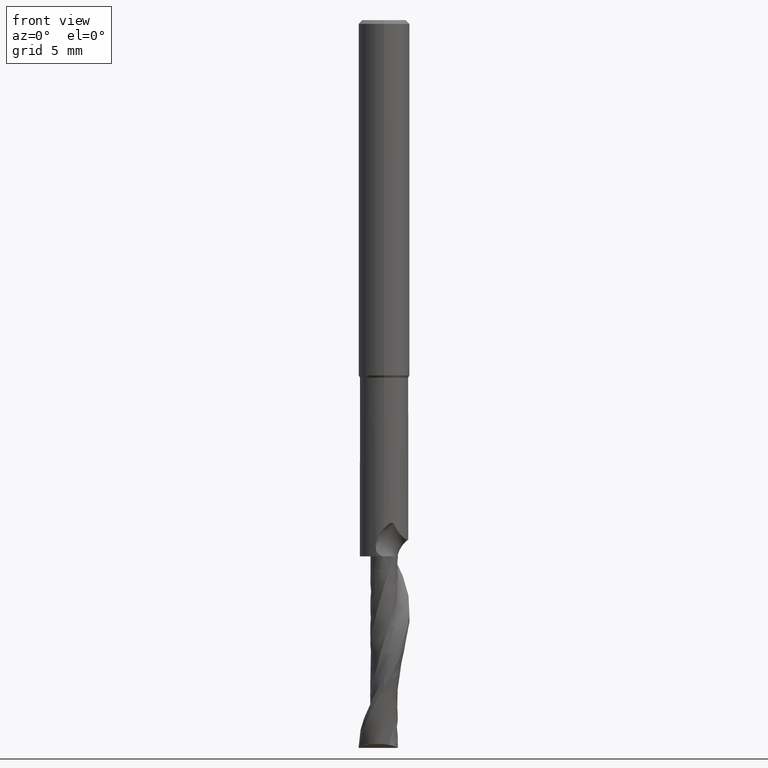
[diagram: clean part render]
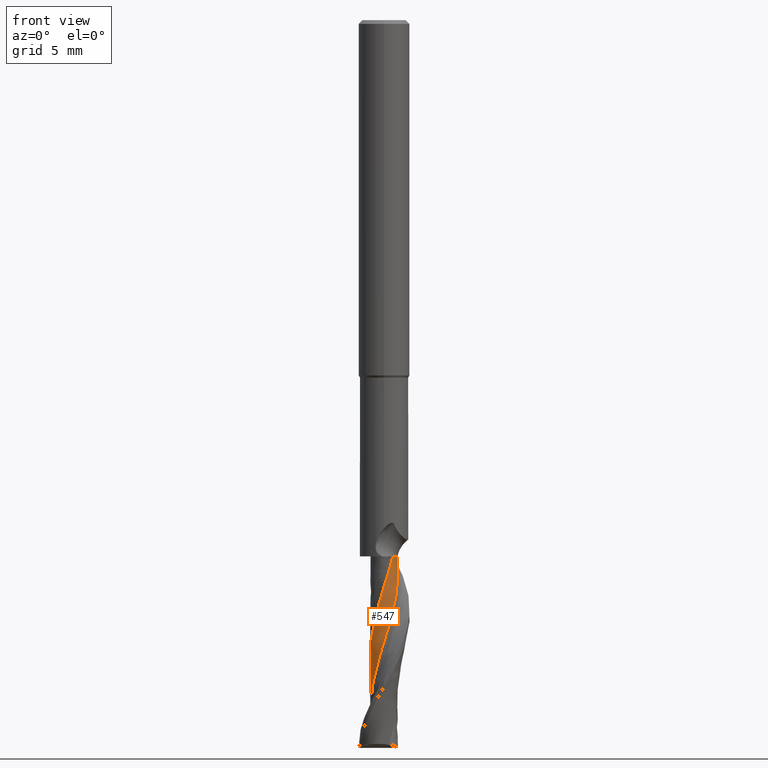
[diagram: same view with one face highlighted and labeled with its STEP entity id]
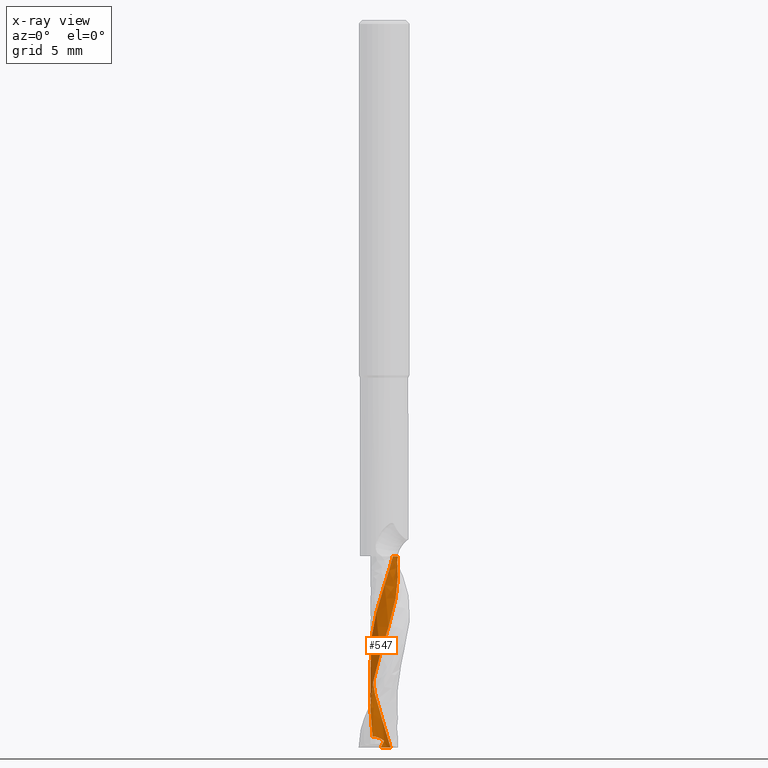
[diagram: x-ray of the same camera — body ghosted, the highlighted face saturated]
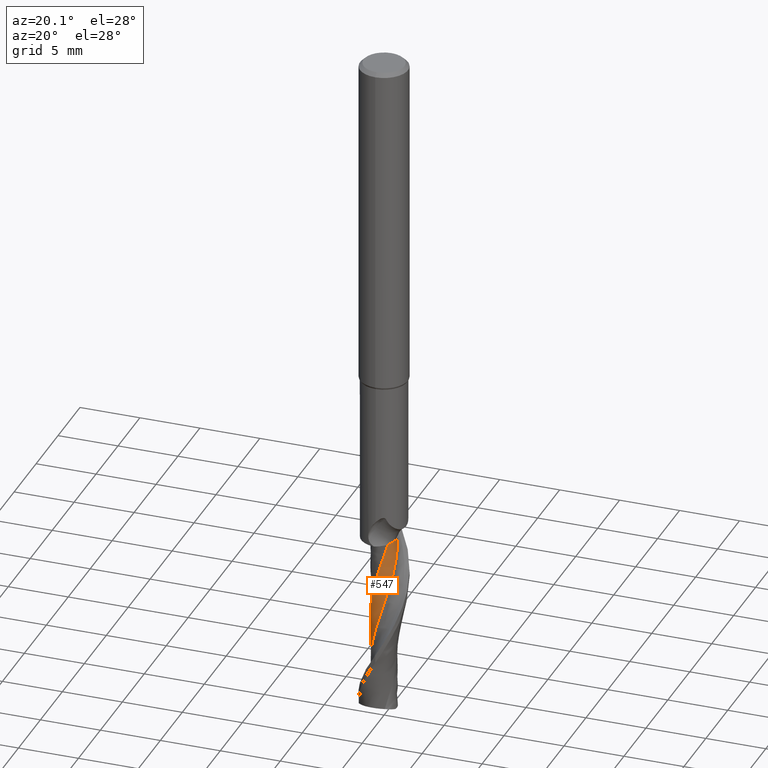
[diagram: same view with one face highlighted and labeled with its STEP entity id]
A machine part, front view. The second image highlights one B-rep face of the part: STEP entity #547.
The next image is the same camera in x-ray: the body ghosted, the highlighted face saturated — about 0% of this face is hidden behind the body in this view.
A second angle (auxiliary view) of the same face is appended — the face is thin or edge-on in the first view.
In plain terms, the highlighted face is a freeform B-spline surface patch.
Its self-contained STEP definition (entity closure, byte-faithful):
#295=VERTEX_POINT('',#792);
#315=VERTEX_POINT('',#814);
#361=EDGE_CURVE('',#563,#691,#868,.T.);
#391=VERTEX_POINT('',#901);
#443=EDGE_CURVE('',#315,#675,#960,.T.);
#493=EDGE_CURVE('',#295,#675,#1011,.T.);
#507=VERTEX_POINT('',#1026);
#533=EDGE_CURVE('',#691,#315,#1056,.T.);
#547=ADVANCED_FACE('',(#1070),#1071,.T.);
#563=VERTEX_POINT('',#1089);
#587=EDGE_CURVE('',#391,#563,#1115,.T.);
#675=VERTEX_POINT('',#1211);
#691=VERTEX_POINT('',#1227);
#743=EDGE_CURVE('',#507,#391,#1286,.T.);
#745=EDGE_CURVE('',#295,#507,#1288,.T.);
#792=CARTESIAN_POINT('',(-0.908903919637681,0.59766019299976,-56.1065295811467));
#814=CARTESIAN_POINT('',(1.05927734357222,-0.256634524727311,-42.0));
#868=B_SPLINE_CURVE_WITH_KNOTS('',3,(#2028,#2029,#2030,#2031,#2032,#2033,#2034,#2035,#2036,#2037,#2038,#2039,#2040,#2041,#2042,#2043,#2044,#2045,#2046,#2047,#2048,#2049,#2050,#2051,#2052,#2053,#2054,#2055,#2056,#2057,#2058,#2059,#2060,#2061,#2062),.UNSPECIFIED.,.F.,.F.,(4,1,2,1,2,1,2,2,2,2,2,2,2,2,2,2,2,2,4),(0.0,0.719943288048691,1.43988657609738,2.15982986414607,2.87977315219476,4.31965972829214,5.75954630438952,7.19943288048691,8.63931945658429,10.0792060326817,11.519092608779,12.9589791848764,14.3988657609738,15.8387523370712,17.2786389131686,18.718525489266,20.1584120653633,21.5982986414607,23.0381852175581),.UNSPECIFIED.);
#901=CARTESIAN_POINT('',(-0.274290728310253,1.0536842717556,-57.0));
#960=B_SPLINE_CURVE_WITH_KNOTS('',3,(#2479,#2480,#2481,#2482,#2483,#2484,#2485,#2486,#2487,#2488),.UNSPECIFIED.,.F.,.F.,(4,2,2,2,4),(0.0,0.421112725777458,0.84222565747436,1.10006293085061,1.35790106555128),.UNSPECIFIED.);
#1011=B_SPLINE_CURVE_WITH_KNOTS('',3,(#2650,#2651,#2652,#2653,#2654,#2655,#2656,#2657,#2658,#2659,#2660,#2661,#2662,#2663,#2664,#2665,#2666,#2667,#2668,#2669,#2670,#2671,#2672,#2673,#2674,#2675,#2676,#2677,#2678,#2679,#2680,#2681,#2682,#2683,#2684,#2685,#2686,#2687),.UNSPECIFIED.,.F.,.F.,(4,1,2,1,2,1,1,2,1,1,1,2,1,1,2,1,1,2,1,1,1,2,1,1,2,1,1,4),(0.0,0.719943288048691,1.43988657609738,2.15982986414607,2.87977315219476,4.31965972829214,5.03960301634083,5.75954630438952,6.47948959243822,7.19943288048691,7.9193761685356,8.63931945658429,9.35926274463298,10.439177676706,11.519092608779,12.5990075408521,13.6789224729251,14.3988657609738,15.1188090490225,15.8387523370712,16.5586956251199,17.2786389131686,17.9985822012173,19.0784971332903,20.1584120653633,21.2383269974364,22.3182419295094,23.0381852175581),.UNSPECIFIED.);
#1026=CARTESIAN_POINT('',(0.00184808041368633,1.08989929635253,-56.4458660816852));
#1056=B_SPLINE_CURVE_WITH_KNOTS('',3,(#2779,#2780,#2781,#2782,#2783,#2784,#2785,#2786,#2787,#2788),.UNSPECIFIED.,.F.,.F.,(4,2,2,2,4),(0.0,0.421112725777458,0.84222565747436,1.10006293085061,1.35790106555128),.UNSPECIFIED.);
#1070=FACE_OUTER_BOUND('',#2816,.T.);
#1071=B_SPLINE_SURFACE_WITH_KNOTS('',3,3,((#2817,#2818,#2819,#2820,#2821,#2822,#2823,#2824,#2825,#2826,#2827,#2828,#2829,#2830,#2831,#2832,#2833,#2834,#2835,#2836,#2837,#2838,#2839,#2840,#2841,#2842,#2843,#2844,#2845,#2846,#2847,#2848,#2849,#2850,#2851,#2852,#2853,#2854),(#2855,#2856,#2857,#2858,#2859,#2860,#2861,#2862,#2863,#2864,#2865,#2866,#2867,#2868,#2869,#2870,#2871,#2872,#2873,#2874,#2875,#2876,#2877,#2878,#2879,#2880,#2881,#2882,#2883,#2884,#2885,#2886,#2887,#2888,#2889,#2890,#2891,#2892),(#2893,#2894,#2895,#2896,#2897,#2898,#2899,#2900,#2901,#2902,#2903,#2904,#2905,#2906,#2907,#2908,#2909,#2910,#2911,#2912,#2913,#2914,#2915,#2916,#2917,#2918,#2919,#2920,#2921,#2922,#2923,#2924,#2925,#2926,#2927,#2928,#2929,#2930),(#2931,#2932,#2933,#2934,#2935,#2936,#2937,#2938,#2939,#2940,#2941,#2942,#2943,#2944,#2945,#2946,#2947,#2948,#2949,#2950,#2951,#2952,#2953,#2954,#2955,#2956,#2957,#2958,#2959,#2960,#2961,#2962,#2963,#2964,#2965,#2966,#2967,#2968),(#2969,#2970,#2971,#2972,#2973,#2974,#2975,#2976,#2977,#2978,#2979,#2980,#2981,#2982,#2983,#2984,#2985,#2986,#2987,#2988,#2989,#2990,#2991,#2992,#2993,#2994,#2995,#2996,#2997,#2998,#2999,#3000,#3001,#3002,#3003,#3004,#3005,#3006),(#3007,#3008,#3009,#3010,#3011,#3012,#3013,#3014,#3015,#3016,#3017,#3018,#3019,#3020,#3021,#3022,#3023,#3024,#3025,#3026,#3027,#3028,#3029,#3030,#3031,#3032,#3033,#3034,#3035,#3036,#3037,#3038,#3039,#3040,#3041,#3042,#3043,#3044)),.UNSPECIFIED.,.F.,.F.,.F.,(4,1,1,4),(4,1,2,1,2,1,1,2,1,1,1,2,1,1,2,1,1,2,1,1,1,2,1,1,2,1,1,4),(-1.25663706143592,-0.785398163397447,-0.314159265358979,0.0),(0.0,0.719943288048691,1.43988657609738,2.15982986414607,2.87977315219476,4.31965972829214,5.03960301634083,5.75954630438952,6.47948959243822,7.19943288048691,7.9193761685356,8.63931945658429,9.35926274463298,10.439177676706,11.519092608779,12.5990075408521,13.6789224729251,14.3988657609738,15.1188090490225,15.8387523370712,16.5586956251199,17.2786389131686,17.9985822012173,19.0784971332903,20.1584120653633,21.2383269974364,22.3182419295094,23.0381852175581),.UNSPECIFIED.);
#1089=CARTESIAN_POINT('',(0.525325365679518,0.951860172944799,-56.9999999999998));
#1115=B_SPLINE_CURVE_WITH_KNOTS('',3,(#3279,#3280,#3281,#3282,#3283,#3284,#3285,#3286,#3287,#3288),.UNSPECIFIED.,.F.,.F.,(4,2,2,2,4),(0.0,0.33935916685655,0.678716511037122,1.01807189192209,1.35742536573676),.UNSPECIFIED.);
#1211=CARTESIAN_POINT('',(1.02057109822842,0.37498551083274,-42.0));
#1227=CARTESIAN_POINT('',(0.683510137595244,-0.846623738727398,-41.9999999999999));
#1286=B_SPLINE_CURVE_WITH_KNOTS('',3,(#4079,#4080,#4081,#4082),.UNSPECIFIED.,.F.,.F.,(4,4),(0.0,1.33610437237141),.UNSPECIFIED.);
#1288=B_SPLINE_CURVE_WITH_KNOTS('',3,(#4085,#4086,#4087,#4088,#4089,#4090,#4091,#4092,#4093,#4094),.UNSPECIFIED.,.F.,.F.,(4,2,2,2,4),(0.0,0.334964897068407,0.700336577006609,1.06687936099216,1.48462642066865),.UNSPECIFIED.);
#2028=CARTESIAN_POINT('',(1.07714679396957,-0.0426817171631313,-61.0));
#2029=CARTESIAN_POINT('',(1.08399123720889,0.00145899359468432,-60.7605133153009));
#2030=CARTESIAN_POINT('',(1.09083513255892,0.108017801827599,-60.2810729616778));
#2031=CARTESIAN_POINT('',(1.06502852875529,0.253807720360794,-59.8015541908973));
#2032=CARTESIAN_POINT('',(1.01115751003306,0.412426612829748,-59.3226640080635));
#2033=CARTESIAN_POINT('',(0.942908259945685,0.55764976591211,-58.8438243611074));
#2034=CARTESIAN_POINT('',(0.850985734571225,0.68046612159865,-58.3647078409853));
#2035=CARTESIAN_POINT('',(0.693515458203038,0.849650748012728,-57.6457773879433));
#2036=CARTESIAN_POINT('',(0.454003221681921,1.01970889234668,-56.6875313890678));
#2037=CARTESIAN_POINT('',(0.161391087956976,1.08905359496926,-55.7287286803577));
#2038=CARTESIAN_POINT('',(-0.156954180196683,1.08643210059574,-54.7705402340196));
#2039=CARTESIAN_POINT('',(-0.302679609183262,1.05380957028583,-54.2916333403399));
#2040=CARTESIAN_POINT('',(-0.570575250621284,0.93824496526071,-53.3333485294366));
#2041=CARTESIAN_POINT('',(-0.694533057388626,0.854111837657368,-52.8539710114739));
#2042=CARTESIAN_POINT('',(-0.907416134952439,0.617949992285343,-51.8956024249471));
#2043=CARTESIAN_POINT('',(-0.981987960209095,0.488025794941939,-51.4166352776186));
#2044=CARTESIAN_POINT('',(-1.07753943864469,0.211611154855253,-50.4582972246699));
#2045=CARTESIAN_POINT('',(-1.09887410064982,0.0630593954145104,-49.9789262798675));
#2046=CARTESIAN_POINT('',(-1.06820965025209,-0.252836405557617,-49.0205942806753));
#2047=CARTESIAN_POINT('',(-1.02279845019452,-0.395264436374698,-48.5416338158127));
#2048=CARTESIAN_POINT('',(-0.883578026970901,-0.652067177716402,-47.5832991772076));
#2049=CARTESIAN_POINT('',(-0.78847398670637,-0.768084464803542,-47.1039249954876));
#2050=CARTESIAN_POINT('',(-0.534623265440165,-0.958796618492741,-46.1455921935192));
#2051=CARTESIAN_POINT('',(-0.398800234823179,-1.02147122135842,-45.6666317429675));
#2052=CARTESIAN_POINT('',(-0.115126362453983,-1.09208755160707,-44.708300692565));
#2053=CARTESIAN_POINT('',(0.0348138366545575,-1.10017789254256,-44.2289301130618));
#2054=CARTESIAN_POINT('',(0.347086498472457,-1.04140070317747,-43.2706119370205));
#2055=CARTESIAN_POINT('',(0.484848963323444,-0.983472034535285,-42.791653932527));
#2056=CARTESIAN_POINT('',(0.728134405824674,-0.822039234602855,-41.8332975279097));
#2057=CARTESIAN_POINT('',(0.835207924227268,-0.71708989952403,-41.3538989479611));
#2058=CARTESIAN_POINT('',(1.00263592060748,-0.446888723728387,-40.3954960120989));
#2059=CARTESIAN_POINT('',(1.05284438898491,-0.305617984596714,-39.9165486954441));
#2060=CARTESIAN_POINT('',(1.09781520919169,-0.0174786807055713,-38.9583088715427));
#2061=CARTESIAN_POINT('',(1.09259152842703,0.131383705920863,-38.4790170220603));
#2062=CARTESIAN_POINT('',(1.05099513463292,0.282352454545382,-37.9999154849174));
#2479=CARTESIAN_POINT('',(0.683510137595202,-0.846623738727431,-42.0));
#2480=CARTESIAN_POINT('',(0.793251132860247,-0.759097137414931,-42.0));
#2481=CARTESIAN_POINT('',(0.884846999414399,-0.650972427353277,-42.0));
#2482=CARTESIAN_POINT('',(1.02143715060763,-0.405698830103435,-42.0));
#2483=CARTESIAN_POINT('',(1.06512552828763,-0.270894892330474,-42.0));
#2484=CARTESIAN_POINT('',(1.09192568841412,-0.0461705800570131,-42.0));
#2485=CARTESIAN_POINT('',(1.09186080590018,0.0400821822933118,-42.0));
#2486=CARTESIAN_POINT('',(1.07124881903562,0.210733693181734,-42.0));
#2487=CARTESIAN_POINT('',(1.05077541139157,0.294521716588546,-42.0));
#2488=CARTESIAN_POINT('',(1.02057109822843,0.374985510832737,-42.0));
#2650=CARTESIAN_POINT('',(0.37344939000775,1.01123810145868,-61.0));
#2651=CARTESIAN_POINT('',(0.340621468948526,1.0288893076158,-60.760506195822));
#2652=CARTESIAN_POINT('',(0.252167524253353,1.06605088906382,-60.2810865784436));
#2653=CARTESIAN_POINT('',(0.106589197296684,1.08872042260066,-59.8015942266927));
#2654=CARTESIAN_POINT('',(-0.0650041847785528,1.08885329739847,-59.3226830225724));
#2655=CARTESIAN_POINT('',(-0.226500323709248,1.07052014649113,-58.8438186207057));
#2656=CARTESIAN_POINT('',(-0.372479955286486,1.02276057696804,-58.3646983516158));
#2657=CARTESIAN_POINT('',(-0.584075009847519,0.927538190437248,-57.6457815826385));
#2658=CARTESIAN_POINT('',(-0.760629699724347,0.799139785852243,-56.9270810511117));
#2659=CARTESIAN_POINT('',(-0.93735269338603,0.567530126751227,-55.9684755177516));
#2660=CARTESIAN_POINT('',(-1.00325547076065,0.427115210344167,-55.4892118325112));
#2661=CARTESIAN_POINT('',(-1.05384212431218,0.273981265134756,-55.0101121116069));
#2662=CARTESIAN_POINT('',(-1.08613274959025,0.123190376706075,-54.5311239004831));
#2663=CARTESIAN_POINT('',(-1.08981111915252,-0.0947393977100193,-53.8125334274262));
#2664=CARTESIAN_POINT('',(-1.05092195248792,-0.309226318173443,-53.0936912079671));
#2665=CARTESIAN_POINT('',(-0.992349737386192,-0.45184248109855,-52.614394142631));
#2666=CARTESIAN_POINT('',(-0.91379751398994,-0.592285590688859,-52.1352111745306));
#2667=CARTESIAN_POINT('',(-0.801931091684408,-0.7494010170831,-51.5363916173422));
#2668=CARTESIAN_POINT('',(-0.582507108376933,-0.937503734222247,-50.5781463025606));
#2669=CARTESIAN_POINT('',(-0.374496034082806,-1.02819463816704,-49.8591527036784));
#2670=CARTESIAN_POINT('',(-0.13998649683277,-1.08321118320028,-49.1404036116041));
#2671=CARTESIAN_POINT('',(0.0858021659181551,-1.09864250942973,-48.4218996440312));
#2672=CARTESIAN_POINT('',(0.367723666850924,-1.03670024723659,-47.4634716578245));
#2673=CARTESIAN_POINT('',(0.538768917895585,-0.947880774702981,-46.8643597523756));
#2674=CARTESIAN_POINT('',(0.671436705492547,-0.857260267868293,-46.3851933223269));
#2675=CARTESIAN_POINT('',(0.788543334537318,-0.75716303495586,-45.9061461544446));
#2676=CARTESIAN_POINT('',(0.923954984757354,-0.585739752094358,-45.1875037938084));
#2677=CARTESIAN_POINT('',(1.02326542115862,-0.390977002860704,-44.4686493281653));
#2678=CARTESIAN_POINT('',(1.0630911599136,-0.24185291670867,-43.9893678039033));
#2679=CARTESIAN_POINT('',(1.08571731739922,-0.082644586259782,-43.5102081281282));
#2680=CARTESIAN_POINT('',(1.0919902280896,0.109767951772535,-42.911408948602));
#2681=CARTESIAN_POINT('',(1.03193434278528,0.391645075350521,-41.9531541895368));
#2682=CARTESIAN_POINT('',(0.921760859279425,0.589934272862351,-41.2341190408617));
#2683=CARTESIAN_POINT('',(0.768327891208202,0.776287987567511,-40.5153207924573));
#2684=CARTESIAN_POINT('',(0.597370918034111,0.925896733759994,-39.7968168825111));
#2685=CARTESIAN_POINT('',(0.336280156353586,1.04704142680787,-38.8384998531331));
#2686=CARTESIAN_POINT('',(0.149027748944477,1.08026934501549,-38.2394750142413));
#2687=CARTESIAN_POINT('',(0.0702150485533287,1.08485319793152,-37.9999218751364));
#2779=CARTESIAN_POINT('',(0.683510137595202,-0.846623738727431,-42.0));
#2780=CARTESIAN_POINT('',(0.793251132860247,-0.759097137414931,-42.0));
#2781=CARTESIAN_POINT('',(0.884846999414399,-0.650972427353277,-42.0));
#2782=CARTESIAN_POINT('',(1.02143715060763,-0.405698830103435,-42.0));
#2783=CARTESIAN_POINT('',(1.06512552828763,-0.270894892330474,-42.0));
#2784=CARTESIAN_POINT('',(1.09192568841412,-0.0461705800570131,-42.0));
#2785=CARTESIAN_POINT('',(1.09186080590018,0.0400821822933118,-42.0));
#2786=CARTESIAN_POINT('',(1.07124881903562,0.210733693181734,-42.0));
#2787=CARTESIAN_POINT('',(1.05077541139157,0.294521716588546,-42.0));
#2788=CARTESIAN_POINT('',(1.02057109822843,0.374985510832737,-42.0));
#2816=EDGE_LOOP('',(#4419,#4420,#4421,#4422,#4423,#4424,#4425));
#2817=CARTESIAN_POINT('',(1.07714679396957,-0.0426817171631312,-61.0));
#2818=CARTESIAN_POINT('',(1.08399123720914,0.00145899359421109,-60.7605133153009));
#2819=CARTESIAN_POINT('',(1.09083513255877,0.108017801827895,-60.2810729616778));
#2820=CARTESIAN_POINT('',(1.06502852875535,0.253807720360675,-59.8015541908973));
#2821=CARTESIAN_POINT('',(1.011157510033,0.412426612829866,-59.3226640080635));
#2822=CARTESIAN_POINT('',(0.942908259945303,0.557649765911687,-58.8438243611074));
#2823=CARTESIAN_POINT('',(0.850985734572049,0.680466121599376,-58.3647078409853));
#2824=CARTESIAN_POINT('',(0.693515458201389,0.849650748011276,-57.6457773879433));
#2825=CARTESIAN_POINT('',(0.51344957291615,0.977454701073482,-56.9270809113943));
#2826=CARTESIAN_POINT('',(0.235209211695165,1.07125328549324,-55.9684531631024));
#2827=CARTESIAN_POINT('',(0.0818047709187978,1.088398221376,-55.4891815687732));
#2828=CARTESIAN_POINT('',(-0.0773678631585045,1.087087474189,-55.0100873456041));
#2829=CARTESIAN_POINT('',(-0.229998152916381,1.06947849697836,-54.531113748526));
#2830=CARTESIAN_POINT('',(-0.439473805250305,1.00265389140837,-53.8125363403828));
#2831=CARTESIAN_POINT('',(-0.631893770249139,0.896103233047496,-53.0936865891168));
#2832=CARTESIAN_POINT('',(-0.747753826779342,0.795071376314484,-52.6143788648422));
#2833=CARTESIAN_POINT('',(-0.854195365561722,0.676990453628227,-52.1351945715788));
#2834=CARTESIAN_POINT('',(-0.966852651887986,0.521270392834581,-51.5363863773557));
#2835=CARTESIAN_POINT('',(-1.07612393721685,0.250174944818432,-50.5781482851614));
#2836=CARTESIAN_POINT('',(-1.09504104435001,0.023572420292817,-49.8591347799685));
#2837=CARTESIAN_POINT('',(-1.0720427065519,-0.213349430435923,-49.1403857805743));
#2838=CARTESIAN_POINT('',(-1.01449367576607,-0.432702476297108,-48.4219019552147));
#2839=CARTESIAN_POINT('',(-0.86370746777709,-0.682793332316813,-47.4634662491593));
#2840=CARTESIAN_POINT('',(-0.725011306389696,-0.815762503226078,-46.8643417949955));
#2841=CARTESIAN_POINT('',(-0.598085945756839,-0.911118580070204,-46.3851753940113));
#2842=CARTESIAN_POINT('',(-0.466194937918306,-0.989765757918085,-45.906138009785));
#2843=CARTESIAN_POINT('',(-0.258740751708628,-1.06381276207122,-45.1875044678727));
#2844=CARTESIAN_POINT('',(-0.0406250589490687,-1.0957001783197,-44.4686414741691));
#2845=CARTESIAN_POINT('',(0.112882002108796,-1.08548359520141,-43.9893505690514));
#2846=CARTESIAN_POINT('',(0.269018333018219,-1.05609500051862,-43.5101914810308));
#2847=CARTESIAN_POINT('',(0.452745405122458,-1.00064198689787,-42.9114053418981));
#2848=CARTESIAN_POINT('',(0.703582138264994,-0.851832741596592,-41.9531570442726));
#2849=CARTESIAN_POINT('',(0.856136423774623,-0.683314752550113,-41.2340985809784));
#2850=CARTESIAN_POINT('',(0.981707421060124,-0.480663870702303,-40.5152963790817));
#2851=CARTESIAN_POINT('',(1.06900967580832,-0.27069955677295,-39.7968125749367));
#2852=CARTESIAN_POINT('',(1.10051386106632,0.018914145933794,-38.8384967286026));
#2853=CARTESIAN_POINT('',(1.07179333152944,0.206868080232996,-38.2394662534888));
#2854=CARTESIAN_POINT('',(1.05099513463292,0.282352454545382,-37.9999154849174));
#2855=CARTESIAN_POINT('',(1.08384276252128,0.126516440514766,-61.0));
#2856=CARTESIAN_POINT('',(1.08431809833584,0.17090915781323,-60.760522751631));
#2857=CARTESIAN_POINT('',(1.07540977985709,0.277449959795774,-60.2810549134447));
#2858=CARTESIAN_POINT('',(1.02698608980152,0.419336173946331,-59.8015011269913));
#2859=CARTESIAN_POINT('',(0.947942131494542,0.570067245787315,-59.3226388052886));
#2860=CARTESIAN_POINT('',(0.856767659003914,0.70493228625181,-58.8438319693571));
#2861=CARTESIAN_POINT('',(0.745605223138932,0.813553920627919,-58.3647204193442));
#2862=CARTESIAN_POINT('',(0.561518757804888,0.958405564523014,-57.6457718263504));
#2863=CARTESIAN_POINT('',(0.361711744576311,1.05823708527317,-56.9270807266092));
#2864=CARTESIAN_POINT('',(0.0688901464276716,1.10888489406066,-55.9684235352551));
#2865=CARTESIAN_POINT('',(-0.0874288198992201,1.10212497173907,-55.4891414538375));
#2866=CARTESIAN_POINT('',(-0.246786143604995,1.07587368928824,-55.0100545228085));
#2867=CARTESIAN_POINT('',(-0.396866515487458,1.03441632074403,-54.5311002919121));
#2868=CARTESIAN_POINT('',(-0.595961467375666,0.935094365826217,-53.8125402023184));
#2869=CARTESIAN_POINT('',(-0.77185253749784,0.79870956370146,-53.0936804673241));
#2870=CARTESIAN_POINT('',(-0.872121440189491,0.679483309385277,-52.6143586142951));
#2871=CARTESIAN_POINT('',(-0.960320482323303,0.544456555026737,-52.1351725666325));
#2872=CARTESIAN_POINT('',(-1.0488152858971,0.370952810576861,-51.5363794296424));
#2873=CARTESIAN_POINT('',(-1.1160352800422,0.0830153779047352,-50.57815091195));
#2874=CARTESIAN_POINT('',(-1.09974663861439,-0.146716129182164,-49.8591110246115));
#2875=CARTESIAN_POINT('',(-1.03959711827562,-0.380584066405113,-49.1403621457486));
#2876=CARTESIAN_POINT('',(-0.947845722487674,-0.591104817376044,-48.4219050190403));
#2877=CARTESIAN_POINT('',(-0.75837783285452,-0.817762056447292,-47.4634590771113));
#2878=CARTESIAN_POINT('',(-0.598766541558275,-0.929295343086998,-46.8643179930291));
#2879=CARTESIAN_POINT('',(-0.456614836626618,-1.00499745345813,-46.385151632222));
#2880=CARTESIAN_POINT('',(-0.31228450315824,-1.06316043966852,-45.9061272159575));
#2881=CARTESIAN_POINT('',(-0.0933405898607584,-1.10501313096291,-45.1875053652401));
#2882=CARTESIAN_POINT('',(0.129731532578472,-1.10306829550864,-44.4686310620179));
#2883=CARTESIAN_POINT('',(0.281858124824703,-1.06890725986895,-43.989327726702));
#2884=CARTESIAN_POINT('',(0.433756692595826,-1.01499939712019,-43.5101694154383));
#2885=CARTESIAN_POINT('',(0.60905617305898,-0.930804159335299,-42.911400560513));
#2886=CARTESIAN_POINT('',(0.836734357865903,-0.743193880376135,-41.9531608357352));
#2887=CARTESIAN_POINT('',(0.963224593033817,-0.550824311354587,-41.2340714544418));
#2888=CARTESIAN_POINT('',(1.05735405629586,-0.328023819114653,-40.5152640295247));
#2889=CARTESIAN_POINT('',(1.11199729180259,-0.104301989951985,-39.7968068636732));
#2890=CARTESIAN_POINT('',(1.09863996840905,0.190078191411071,-38.8384925871081));
#2891=CARTESIAN_POINT('',(1.04063007946411,0.373755722105281,-38.2394546365397));
#2892=CARTESIAN_POINT('',(1.00799211083989,0.446131550981507,-37.9999070151728));
#2893=CARTESIAN_POINT('',(1.01601763482084,0.467974703546804,-61.0));
#2894=CARTESIAN_POINT('',(1.00363952035272,0.509814185677439,-60.7605346043547));
#2895=CARTESIAN_POINT('',(0.963249562604911,0.608758310097888,-60.2810322441157));
#2896=CARTESIAN_POINT('',(0.87148569642605,0.731984974981225,-59.8014344736084));
#2897=CARTESIAN_POINT('',(0.745904432696714,0.854865075290418,-59.322607149909));
#2898=CARTESIAN_POINT('',(0.613871745470773,0.958019630332257,-58.8438415268912));
#2899=CARTESIAN_POINT('',(0.47105989918096,1.0290298824518,-58.3647362155062));
#2900=CARTESIAN_POINT('',(0.245444196389741,1.11246227330461,-57.6457648469553));
#2901=CARTESIAN_POINT('',(0.0195987624896996,1.1468987918491,-56.9270804910483));
#2902=CARTESIAN_POINT('',(-0.28166088566369,1.10428516036581,-55.9683863156041));
#2903=CARTESIAN_POINT('',(-0.432332529889933,1.04833808975367,-55.4890910734203));
#2904=CARTESIAN_POINT('',(-0.580088208560719,0.972139487619029,-55.010013288022));
#2905=CARTESIAN_POINT('',(-0.713624374355998,0.884230652161087,-54.5310833930834));
#2906=CARTESIAN_POINT('',(-0.876369302956959,0.724925671625427,-53.8125450507678));
#2907=CARTESIAN_POINT('',(-1.00489775272985,0.536832845717159,-53.0936727760267));
#2908=CARTESIAN_POINT('',(-1.06526547949906,0.388717520809731,-52.6143331814102));
#2909=CARTESIAN_POINT('',(-1.10886231944134,0.22857027495603,-52.1351449234797));
#2910=CARTESIAN_POINT('',(-1.14051811507395,0.0311125525758937,-51.5363707101313));
#2911=CARTESIAN_POINT('',(-1.11558954345211,-0.270310115277176,-50.5781542147555));
#2912=CARTESIAN_POINT('',(-1.02741918971459,-0.489398866724975,-49.8590811826033));
#2913=CARTESIAN_POINT('',(-0.894466473207985,-0.699330045494336,-49.1403324621643));
#2914=CARTESIAN_POINT('',(-0.738580352770532,-0.875777820727396,-48.4219088639654));
#2915=CARTESIAN_POINT('',(-0.483031415062187,-1.03702259506562,-47.4634500774328));
#2916=CARTESIAN_POINT('',(-0.291897355251609,-1.09566460759245,-46.8642880985652));
#2917=CARTESIAN_POINT('',(-0.128740067438804,-1.12476815602108,-46.385121783074));
#2918=CARTESIAN_POINT('',(0.0306258240843927,-1.13601057484993,-45.9061136535153));
#2919=CARTESIAN_POINT('',(0.257086376534999,-1.10798876350805,-45.1875064826393));
#2920=CARTESIAN_POINT('',(0.473828238760698,-1.03603084315589,-44.4686179921221));
#2921=CARTESIAN_POINT('',(0.611702371453475,-0.954664996248022,-43.9892990296872));
#2922=CARTESIAN_POINT('',(0.743360562055642,-0.853774644550235,-43.5101417047405));
#2923=CARTESIAN_POINT('',(0.888016844490188,-0.716165810197746,-42.9113945540275));
#2924=CARTESIAN_POINT('',(1.05077516890407,-0.46210385814374,-41.9531655812496));
#2925=CARTESIAN_POINT('',(1.11371252835938,-0.234562668588748,-41.2340374017536));
#2926=CARTESIAN_POINT('',(1.13531583641912,0.0134277699245409,-40.5152233758383));
#2927=CARTESIAN_POINT('',(1.11806707855979,0.248976724696762,-39.7967996941599));
#2928=CARTESIAN_POINT('',(1.01273923627803,0.531353137398595,-38.8384873878281));
#2929=CARTESIAN_POINT('',(0.898229503012728,0.692423512300049,-38.239440059716));
#2930=CARTESIAN_POINT('',(0.843414652247447,0.752902236266424,-37.9998963765348));
#2931=CARTESIAN_POINT('',(0.728694971261275,0.832525564935115,-61.0));
#2932=CARTESIAN_POINT('',(0.702594198813939,0.863549289199922,-60.7605282595353));
#2933=CARTESIAN_POINT('',(0.629406926246145,0.934407154129376,-60.2810443793987));
#2934=CARTESIAN_POINT('',(0.497457549023051,1.00922565476268,-59.8014701528548));
#2935=CARTESIAN_POINT('',(0.333458277106947,1.07084315234894,-59.3226240957518));
#2936=CARTESIAN_POINT('',(0.172090737953486,1.11158909080792,-58.8438364106649));
#2937=CARTESIAN_POINT('',(0.0144561865433489,1.11875697814802,-58.364727759246));
#2938=CARTESIAN_POINT('',(-0.223302807219587,1.10408335224905,-57.6457685840722));
#2939=CARTESIAN_POINT('',(-0.440482651849623,1.04507073133806,-56.9270806194746));
#2940=CARTESIAN_POINT('',(-0.695296059894732,0.886562410382509,-55.968406240507));
#2941=CARTESIAN_POINT('',(-0.809476421540641,0.775605283143018,-55.4891180428222));
#2942=CARTESIAN_POINT('',(-0.913207363410328,0.647098945453286,-55.0100353606191));
#2943=CARTESIAN_POINT('',(-0.998964247757756,0.514027827753279,-54.5310924379169));
#2944=CARTESIAN_POINT('',(-1.08220917097761,0.305478832604959,-53.8125424560931));
#2945=CARTESIAN_POINT('',(-1.12316624701434,0.0846400138194821,-53.0936768957595));
#2946=CARTESIAN_POINT('',(-1.11864294784277,-0.0736325321471201,-52.6143467935524));
#2947=CARTESIAN_POINT('',(-1.09404627787118,-0.236613816846286,-52.1351597231601));
#2948=CARTESIAN_POINT('',(-1.04367874785711,-0.42811049035817,-51.5363753772353));
#2949=CARTESIAN_POINT('',(-0.901121389067309,-0.689756318543427,-50.5781524486532));
#2950=CARTESIAN_POINT('',(-0.734006793798286,-0.852678132919598,-49.8590971508648));
#2951=CARTESIAN_POINT('',(-0.5290647189154,-0.990092435928071,-49.140348358199));
#2952=CARTESIAN_POINT('',(-0.31762401322719,-1.08723125375123,-48.4219068028142));
#2953=CARTESIAN_POINT('',(-0.0231845219092392,-1.1307603350018,-47.4634548930867));
#2954=CARTESIAN_POINT('',(0.173369825126481,-1.10748565669664,-46.8643041045155));
#2955=CARTESIAN_POINT('',(0.333264250284647,-1.06851579000604,-46.3851377581292));
#2956=CARTESIAN_POINT('',(0.482080498340192,-1.0149171284155,-45.9061209133782));
#2957=CARTESIAN_POINT('',(0.675161053946933,-0.899339919061332,-45.1875058807169));
#2958=CARTESIAN_POINT('',(0.84199024873047,-0.748046281933904,-44.4686249904667));
#2959=CARTESIAN_POINT('',(0.934351339369546,-0.619235612620835,-43.9893143910268));
#2960=CARTESIAN_POINT('',(1.01351803358167,-0.474790213514645,-43.51015653868));
#2961=CARTESIAN_POINT('',(1.08943124817156,-0.292285715835655,-42.9113977686758));
#2962=CARTESIAN_POINT('',(1.13483462744353,0.00140532592919684,-41.9531630322282));
#2963=CARTESIAN_POINT('',(1.10098098215043,0.232245683699028,-41.2340556383608));
#2964=CARTESIAN_POINT('',(1.02117779957187,0.466244711673084,-40.5152451298694));
#2965=CARTESIAN_POINT('',(0.911367052075909,0.672312512519026,-39.7968035354199));
#2966=CARTESIAN_POINT('',(0.704055522965062,0.884741454406852,-38.838490172548));
#2967=CARTESIAN_POINT('',(0.53611814462882,0.984746073736796,-38.2394478642057));
#2968=CARTESIAN_POINT('',(0.462163026888442,1.01766409466533,-37.9999020714412));
#2969=CARTESIAN_POINT('',(0.479344040807237,0.972125278022467,-61.0));
#2970=CARTESIAN_POINT('',(0.447988408018598,0.993762674481421,-60.7605135128984));
#2971=CARTESIAN_POINT('',(0.362769180550525,1.04091514309516,-60.2810725835827));
#2972=CARTESIAN_POINT('',(0.219376645560213,1.07872873010742,-59.8015530800007));
#2973=CARTESIAN_POINT('',(0.0479697606672393,1.09644717264084,-59.3226634799893));
#2974=CARTESIAN_POINT('',(-0.115369290317786,1.09478355444373,-58.8438245203512));
#2975=CARTESIAN_POINT('',(-0.266383757537218,1.0621475862088,-58.3647081048521));
#2976=CARTESIAN_POINT('',(-0.487921414911874,0.988814734889428,-57.6457772705486));
#2977=CARTESIAN_POINT('',(-0.678142957636315,0.878696951915794,-56.9270809054455));
#2978=CARTESIAN_POINT('',(-0.879219450973983,0.665224326596135,-55.9684525420397));
#2979=CARTESIAN_POINT('',(-0.959677700577232,0.531583455271257,-55.4891807281643));
#2980=CARTESIAN_POINT('',(-1.02603902240149,0.383706222716036,-55.010086658836));
#2981=CARTESIAN_POINT('',(-1.07397541519499,0.236213196747946,-54.5311134672327));
#2982=CARTESIAN_POINT('',(-1.10039685891675,0.0183987628487824,-53.8125364201762));
#2983=CARTESIAN_POINT('',(-1.08382923673911,-0.200419695844342,-53.0936864591087));
#2984=CARTESIAN_POINT('',(-1.04000551943748,-0.349171510663883,-52.6143784428385));
#2985=CARTESIAN_POINT('',(-0.975956561423906,-0.497688565108342,-52.1351941087173));
#2986=CARTESIAN_POINT('',(-0.880344577533943,-0.666458652842357,-51.5363862323426));
#2987=CARTESIAN_POINT('',(-0.680264409046078,-0.877751899020907,-50.5781483388798));
#2988=CARTESIAN_POINT('',(-0.481492175854084,-0.990119041459792,-49.8591342899365));
#2989=CARTESIAN_POINT('',(-0.252702326690714,-1.0693194029025,-49.1403852782164));
#2990=CARTESIAN_POINT('',(-0.0283620822874269,-1.10825573128072,-48.4219020216616));
#2991=CARTESIAN_POINT('',(0.260445415536468,-1.07566739036585,-47.4634661014766));
#2992=CARTESIAN_POINT('',(0.440771301264233,-1.0045258580643,-46.864341293658));
#2993=CARTESIAN_POINT('',(0.582762274300395,-0.927609299731158,-46.3851748993222));
#2994=CARTESIAN_POINT('',(0.710292801416264,-0.839620089269956,-45.9061377844144));
#2995=CARTESIAN_POINT('',(0.863748453141824,-0.682115923790228,-45.1875044891657));
#2996=CARTESIAN_POINT('',(0.983487720035679,-0.497467607217579,-44.468641254789));
#2997=CARTESIAN_POINT('',(1.03877912696952,-0.352402626228723,-43.989350089164));
#2998=CARTESIAN_POINT('',(1.07782421532595,-0.195560283830597,-43.5101910205093));
#2999=CARTESIAN_POINT('',(1.10405690424436,-0.00372755577629896,-42.9114052403135));
#3000=CARTESIAN_POINT('',(1.07337392963013,0.284836571341732,-41.9531571317397));
#3001=CARTESIAN_POINT('',(0.983693891209299,0.494735611292446,-41.2340980037361));
#3002=CARTESIAN_POINT('',(0.849515424453619,0.696871467101949,-40.515295710839));
#3003=CARTESIAN_POINT('',(0.6940111565417,0.864351517977104,-39.7968124526664));
#3004=CARTESIAN_POINT('',(0.445187245486487,1.01295692127101,-38.8384966399295));
#3005=CARTESIAN_POINT('',(0.261259321443188,1.06563605266009,-38.2394660092479));
#3006=CARTESIAN_POINT('',(0.182915628472861,1.07836711530909,-37.9999153075526));
#3007=CARTESIAN_POINT('',(0.37344939000775,1.01123810145868,-61.0));
#3008=CARTESIAN_POINT('',(0.340621468948526,1.0288893076158,-60.760506195822));
#3009=CARTESIAN_POINT('',(0.252167524253353,1.06605088906382,-60.2810865784436));
#3010=CARTESIAN_POINT('',(0.106589197296684,1.08872042260066,-59.8015942266927));
#3011=CARTESIAN_POINT('',(-0.0650041847785528,1.08885329739847,-59.3226830225724));
#3012=CARTESIAN_POINT('',(-0.226500323709248,1.07052014649113,-58.8438186207057));
#3013=CARTESIAN_POINT('',(-0.372479955286486,1.02276057696804,-58.3646983516158));
#3014=CARTESIAN_POINT('',(-0.584075009847519,0.927538190437248,-57.6457815826385));
#3015=CARTESIAN_POINT('',(-0.760629699724347,0.799139785852243,-56.9270810511117));
#3016=CARTESIAN_POINT('',(-0.93735269338603,0.567530126751227,-55.9684755177516));
#3017=CARTESIAN_POINT('',(-1.00325547076065,0.427115210344167,-55.4892118325112));
#3018=CARTESIAN_POINT('',(-1.05384212431218,0.273981265134756,-55.0101121116069));
#3019=CARTESIAN_POINT('',(-1.08613274959025,0.123190376706075,-54.5311239004831));
#3020=CARTESIAN_POINT('',(-1.08981111915252,-0.0947393977100193,-53.8125334274262));
#3021=CARTESIAN_POINT('',(-1.05092195248792,-0.309226318173443,-53.0936912079671));
#3022=CARTESIAN_POINT('',(-0.992349737386192,-0.45184248109855,-52.614394142631));
#3023=CARTESIAN_POINT('',(-0.91379751398994,-0.592285590688859,-52.1352111745306));
#3024=CARTESIAN_POINT('',(-0.801931091684408,-0.7494010170831,-51.5363916173422));
#3025=CARTESIAN_POINT('',(-0.582507108376933,-0.937503734222247,-50.5781463025606));
#3026=CARTESIAN_POINT('',(-0.374496034082806,-1.02819463816704,-49.8591527036784));
#3027=CARTESIAN_POINT('',(-0.13998649683277,-1.08321118320028,-49.1404036116041));
#3028=CARTESIAN_POINT('',(0.0858021659181551,-1.09864250942973,-48.4218996440312));
#3029=CARTESIAN_POINT('',(0.367723666850924,-1.03670024723659,-47.4634716578245));
#3030=CARTESIAN_POINT('',(0.538768917895585,-0.947880774702981,-46.8643597523756));
#3031=CARTESIAN_POINT('',(0.671436705492547,-0.857260267868293,-46.3851933223269));
#3032=CARTESIAN_POINT('',(0.788543334537318,-0.75716303495586,-45.9061461544446));
#3033=CARTESIAN_POINT('',(0.923954984757354,-0.585739752094358,-45.1875037938084));
#3034=CARTESIAN_POINT('',(1.02326542115862,-0.390977002860704,-44.4686493281653));
#3035=CARTESIAN_POINT('',(1.0630911599136,-0.24185291670867,-43.9893678039033));
#3036=CARTESIAN_POINT('',(1.08571731739922,-0.082644586259782,-43.5102081281282));
#3037=CARTESIAN_POINT('',(1.0919902280896,0.109767951772535,-42.911408948602));
#3038=CARTESIAN_POINT('',(1.03193434278528,0.391645075350521,-41.9531541895368));
#3039=CARTESIAN_POINT('',(0.921760859279425,0.589934272862351,-41.2341190408617));
#3040=CARTESIAN_POINT('',(0.768327891208202,0.776287987567511,-40.5153207924573));
#3041=CARTESIAN_POINT('',(0.597370918034111,0.925896733759994,-39.7968168825111));
#3042=CARTESIAN_POINT('',(0.336280156353586,1.04704142680787,-38.8384998531331));
#3043=CARTESIAN_POINT('',(0.149027748944477,1.08026934501549,-38.2394750142413));
#3044=CARTESIAN_POINT('',(0.0702150485533287,1.08485319793152,-37.9999218751364));
#3279=CARTESIAN_POINT('',(-0.733048159370844,0.802074545909588,-57.0));
#3280=CARTESIAN_POINT('',(-0.650032838238003,0.878915472681484,-57.0));
#3281=CARTESIAN_POINT('',(-0.555437490558578,0.942212824206355,-57.0));
#3282=CARTESIAN_POINT('',(-0.350042946839724,1.03706583052174,-57.0));
#3283=CARTESIAN_POINT('',(-0.240518002428405,1.06803323537909,-57.0));
#3284=CARTESIAN_POINT('',(-0.0158662151012611,1.0947729946172,-57.0));
#3285=CARTESIAN_POINT('',(0.0978669837212365,1.09037967435883,-57.0));
#3286=CARTESIAN_POINT('',(0.319785331249802,1.04638986453987,-57.0));
#3287=CARTESIAN_POINT('',(0.426593869973223,1.00706645774129,-57.0));
#3288=CARTESIAN_POINT('',(0.525325365679634,0.951860172944734,-57.0));
#4079=CARTESIAN_POINT('',(0.240397510091046,1.06187941852473,-55.9971207900835));
#4080=CARTESIAN_POINT('',(0.0274201948251377,1.1121067455632,-56.3850262486508));
#4081=CARTESIAN_POINT('',(-0.184999703775936,1.09258442764426,-56.8070831361063));
#4082=CARTESIAN_POINT('',(-0.373038865775188,1.02196514877744,-57.2076407521384));
#4085=CARTESIAN_POINT('',(-0.908903919635375,0.597660193000402,-56.1065295811511));
#4086=CARTESIAN_POINT('',(-0.84844236776818,0.691146692299797,-56.0980734261341));
#4087=CARTESIAN_POINT('',(-0.774216185200819,0.774091122253483,-56.1039078652074));
#4088=CARTESIAN_POINT('',(-0.596682263517972,0.92027680226816,-56.1444601468892));
#4089=CARTESIAN_POINT('',(-0.495011605153071,0.978090311866964,-56.1808827734387));
#4090=CARTESIAN_POINT('',(-0.284716837636045,1.0587344875595,-56.276058340294));
#4091=CARTESIAN_POINT('',(-0.177666837836015,1.08088617665426,-56.3341372525954));
#4092=CARTESIAN_POINT('',(0.0455976455337431,1.09535789930369,-56.4714334245709));
#4093=CARTESIAN_POINT('',(0.161148484380042,1.08313350516234,-56.5525361603607));
#4094=CARTESIAN_POINT('',(0.269297429248489,1.05494999883987,-56.6369742250771));
#4419=ORIENTED_EDGE('',*,*,#587,.F.);
#4420=ORIENTED_EDGE('',*,*,#743,.F.);
#4421=ORIENTED_EDGE('',*,*,#745,.F.);
#4422=ORIENTED_EDGE('',*,*,#493,.T.);
#4423=ORIENTED_EDGE('',*,*,#443,.F.);
#4424=ORIENTED_EDGE('',*,*,#533,.F.);
#4425=ORIENTED_EDGE('',*,*,#361,.F.);